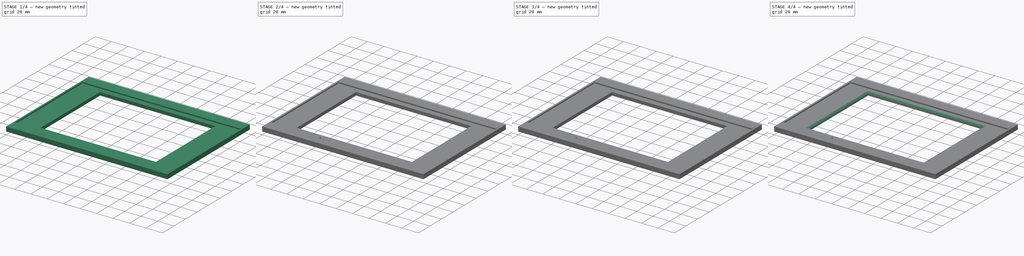
[diagram: build sequence overview — one tinted view per stage of 4, left to right]
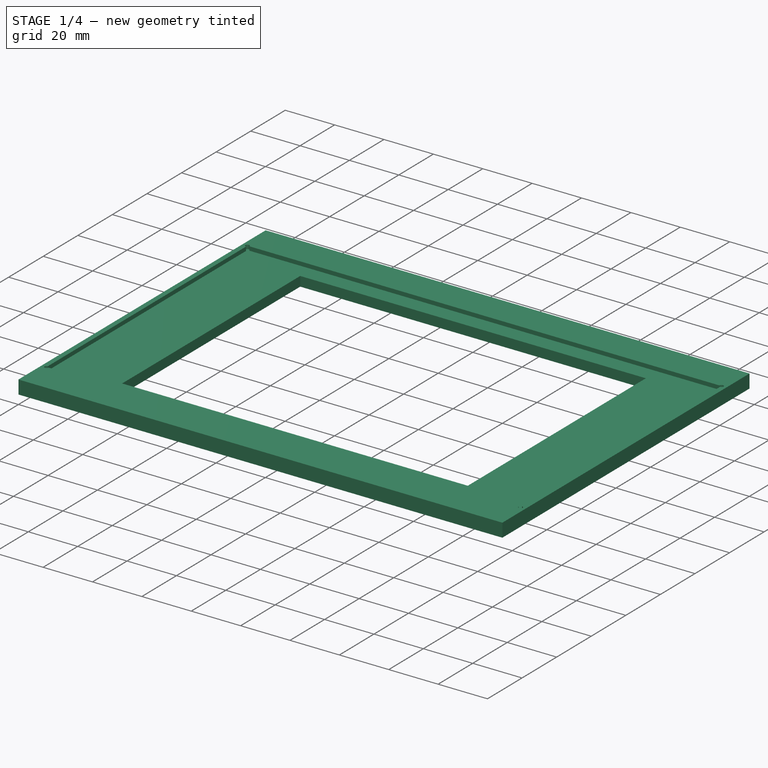
[diagram: stage 1 of 4 — iso view after this stage's code; geometry added in this stage tinted green]
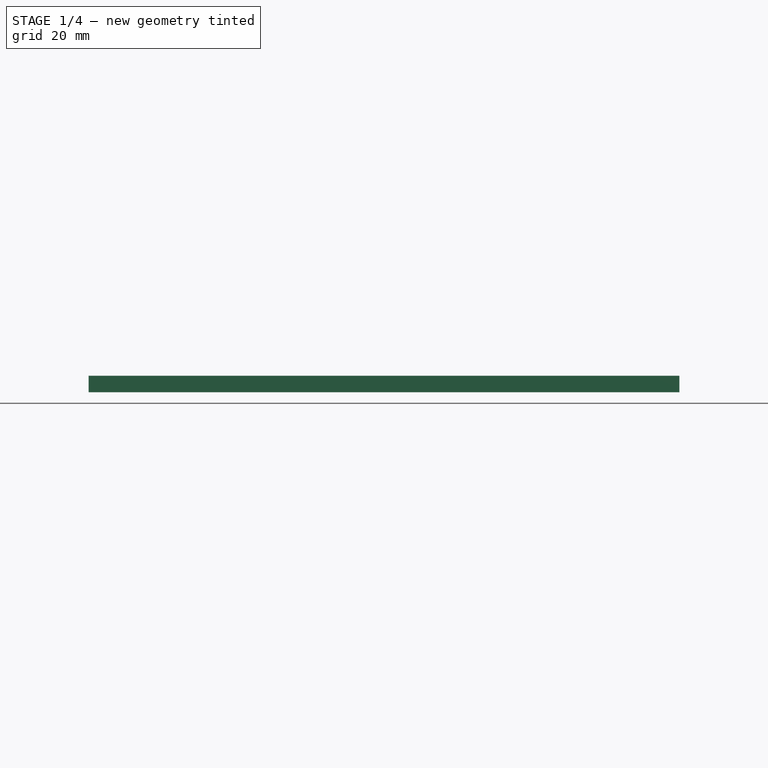
[diagram: stage 1 of 4 — front view after this stage's code; geometry added in this stage tinted green]
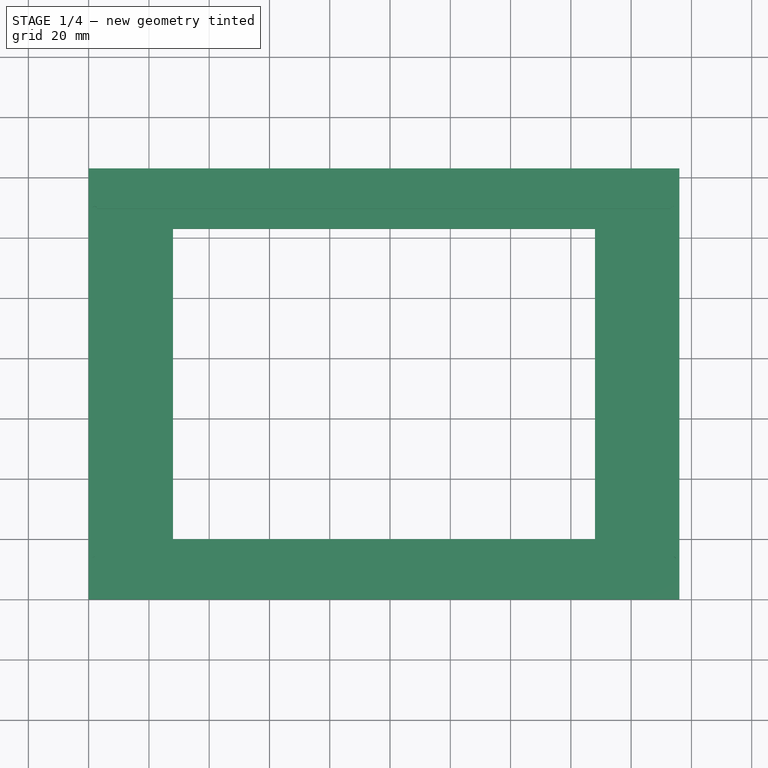
[diagram: stage 1 of 4 — top view after this stage's code; geometry added in this stage tinted green]
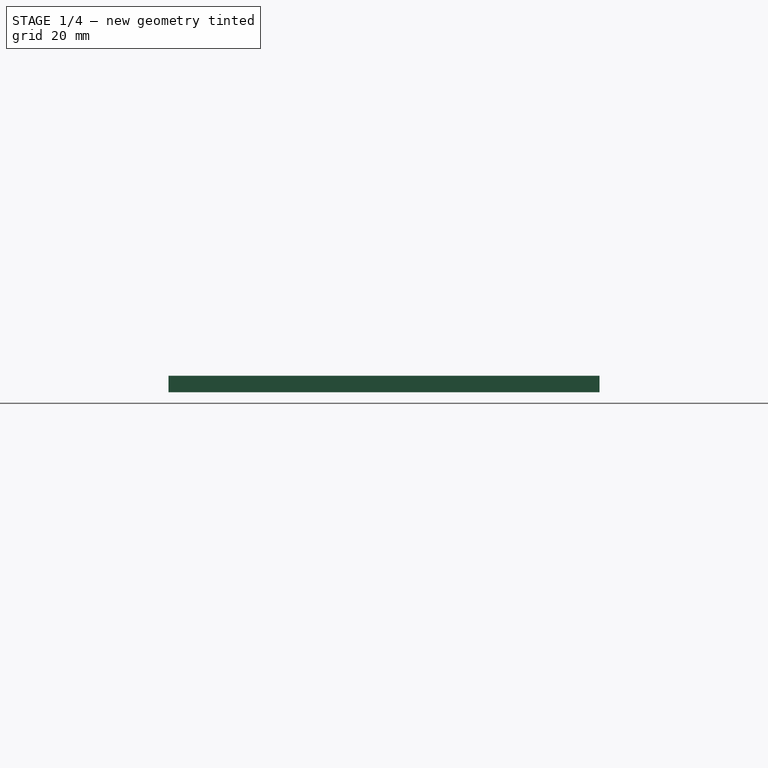
[diagram: stage 1 of 4 — right view after this stage's code; geometry added in this stage tinted green]
FCSTD DOCUMENT  (FreeCAD 0.19R24291 (Git))
Label: epaperFrameV5
License: All rights reserved
LicenseURL: http://en.wikipedia.org/wiki/All_rights_reserved
objects: Sketcher::SketchObject×8, PartDesign::Pocket×7, PartDesign::Pad×1, PartDesign::Chamfer×1, PartDesign::Body×1
note: 27 computed .brp shape members not serialized (recipe doc carries the construction recipe); baked Part::Feature solids carry a one-line shape summary decoded from their .brp

FEATURE [Sketcher::SketchObject] Sketch
  FullyConstrained = true
  MapMode = 5
  Support = -> [XY_Plane]
  sketch-geometry (8):
    g0: LineSegment StartX=0 StartY=0 StartZ=0 EndX=196 EndY=0 EndZ=0
    g1: LineSegment StartX=196 StartY=0 StartZ=0 EndX=196 EndY=143 EndZ=0
    g2: LineSegment StartX=196 StartY=143 StartZ=0 EndX=0 EndY=143 EndZ=0
    g3: LineSegment StartX=0 StartY=143 StartZ=0 EndX=0 EndY=0 EndZ=0
    g4: LineSegment StartX=28 StartY=123 StartZ=0 EndX=168 EndY=123 EndZ=0
    g5: LineSegment StartX=168 StartY=123 StartZ=0 EndX=168 EndY=20 EndZ=0
    g6: LineSegment StartX=168 StartY=20 StartZ=0 EndX=28 EndY=20 EndZ=0
    g7: LineSegment StartX=28 StartY=20 StartZ=0 EndX=28 EndY=123 EndZ=0
  constraints (23):
    c: Coincident(g0,g1)
    c: Coincident(g1,g2)
    c: Coincident(g2,g3)
    c: Coincident(g3,g0)
    c: Horizontal(g0)
    c: Horizontal(g2)
    c: Vertical(g1)
    c: Vertical(g3)
    c: Coincident(g0,g-1)
    c: Coincident(g4,g5)
    c: Coincident(g5,g6)
    c: Coincident(g6,g7)
    c: Coincident(g7,g4)
    c: Horizontal(g4)
    c: Horizontal(g6)
    c: Vertical(g5)
    c: Vertical(g7)
    c: DistanceX(g6,g6) = 140
    c: DistanceY(g5,g5) = 103
    c: DistanceX(g0,g0) = 196
    c: DistanceY(g1,g1) = 143
    c: DistanceY(g0,g6) = 20
    c: DistanceX(g0,g6) = 28
FEATURE [PartDesign::Pad] Pad
  Direction = (1,1,1)
  Length = 5.5
  Length2 = 100
  Profile = -> Sketch
  Type = 0
FEATURE [Sketcher::SketchObject] Sketch001
  FullyConstrained = true
  MapMode = 5
  Placement = pos=(0,0,5.5) rot=(0,0,1;0rad)
  Support = -> [Pad]
  sketch-geometry (16):
    g0: LineSegment StartX=2.8 StartY=129.6 StartZ=0 EndX=193.2 EndY=129.6 EndZ=0
    g1: LineSegment StartX=194 StartY=128.8 StartZ=0 EndX=194 EndY=14.2 EndZ=0
    g2: LineSegment StartX=193.2 StartY=13.4 StartZ=0 EndX=2.8 EndY=13.4 EndZ=0
    g3: LineSegment StartX=2 StartY=14.2 StartZ=0 EndX=2 EndY=128.8 EndZ=0
    g4: ArcOfCircle CenterX=194 CenterY=129.6 CenterZ=0 NormalX=0 NormalY=0 NormalZ=1 AngleXU=0 Radius=0.8 StartAngle=4.71239 EndAngle=9.42478
    g5: ArcOfCircle CenterX=2 CenterY=129.6 CenterZ=0 NormalX=0 NormalY=0 NormalZ=1 AngleXU=0 Radius=0.8 StartAngle=0 EndAngle=4.71239
    g6: ArcOfCircle CenterX=2 CenterY=13.4 CenterZ=0 NormalX=0 NormalY=0 NormalZ=1 AngleXU=0 Radius=0.8 StartAngle=1.5708 EndAngle=6.28319
    g7: ArcOfCircle CenterX=194 CenterY=13.4 CenterZ=0 NormalX=0 NormalY=0 NormalZ=1 AngleXU=0 Radius=0.8 StartAngle=3.14159 EndAngle=7.85398
    g8: LineSegment StartX=2 StartY=14.2 StartZ=0 EndX=2 EndY=13.4 EndZ=0
    g9: LineSegment StartX=2.8 StartY=13.4 StartZ=0 EndX=2 EndY=13.4 EndZ=0
    g10: LineSegment StartX=2 StartY=129.6 StartZ=0 EndX=2.8 EndY=129.6 EndZ=0
    g11: LineSegment StartX=2 StartY=129.6 StartZ=0 EndX=2 EndY=128.8 EndZ=0
    g12: LineSegment StartX=193.2 StartY=129.6 StartZ=0 EndX=194 EndY=129.6 EndZ=0
    g13: LineSegment StartX=194 StartY=129.6 StartZ=0 EndX=194 EndY=128.8 EndZ=0
    g14: LineSegment StartX=194 StartY=14.2 StartZ=0 EndX=194 EndY=13.4 EndZ=0
    g15: LineSegment StartX=194 StartY=13.4 StartZ=0 EndX=193.2 EndY=13.4 EndZ=0
  constraints (44):
    c: Horizontal(g0)
    c: Horizontal(g2)
    c: Vertical(g1)
    c: Vertical(g3)
    c: Radius(g4) = 0.8
    c: Equal(g4,g5)
    c: Equal(g5,g6)
    c: Equal(g6,g7)
    c: DistanceX(g6,g7) = 192
    c: DistanceY(g7,g4) = 116.2
    c: DistanceX(g-1,g6) = 2
    c: DistanceY(g-1,g6) = 13.4
    c: Coincident(g8,g3)
    c: Coincident(g8,g6)
    c: Vertical(g8)
    c: Coincident(g9,g2)
    c: Coincident(g9,g6)
    c: Horizontal(g9)
    c: Coincident(g10,g5)
    c: Coincident(g10,g0)
    c: Horizontal(g10)
    c: Coincident(g11,g5)
    c: Coincident(g11,g3)
    c: Vertical(g11)
    c: Coincident(g12,g0)
    c: Coincident(g12,g4)
    c: Horizontal(g12)
    c: Coincident(g13,g4)
    c: Coincident(g13,g1)
    c: Vertical(g13)
    c: Coincident(g14,g1)
    c: Coincident(g14,g7)
    c: Vertical(g14)
    c: Coincident(g15,g7)
    c: Coincident(g15,g2)
    c: Horizontal(g15)
    c: Coincident(g7,g2)
    c: Coincident(g7,g1)
    c: Coincident(g6,g3)
    c: Coincident(g6,g2)
    c: Coincident(g5,g0)
    c: Coincident(g5,g3)
    c: Coincident(g4,g1)
    c: Coincident(g4,g0)
FEATURE [PartDesign::Pocket] Pocket
  BaseFeature = -> Pad
  Length = 1.6
  Length2 = 100
  Profile = -> Sketch001
  Type = 0
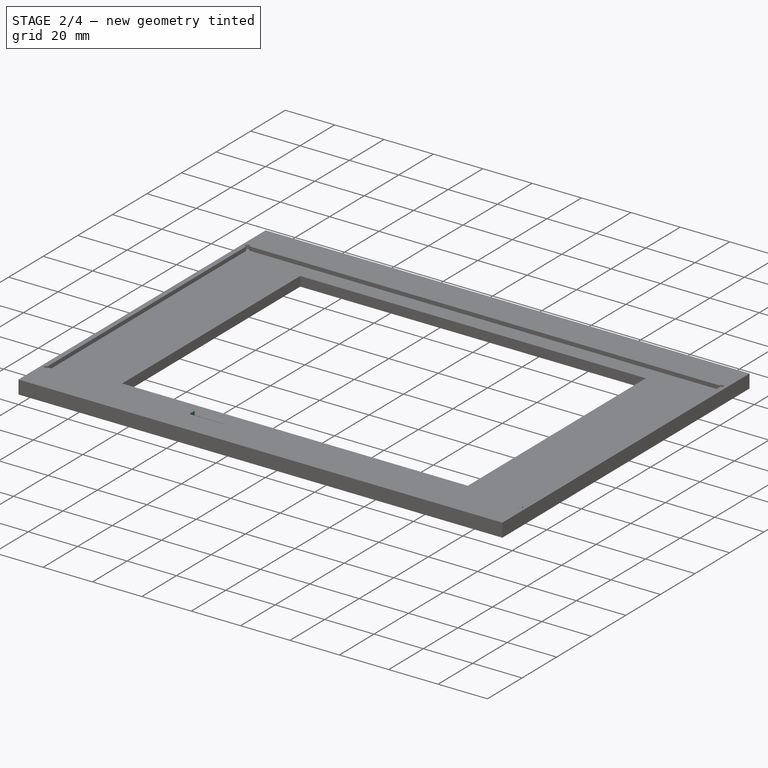
[diagram: stage 2 of 4 — iso view after this stage's code; geometry added in this stage tinted green]
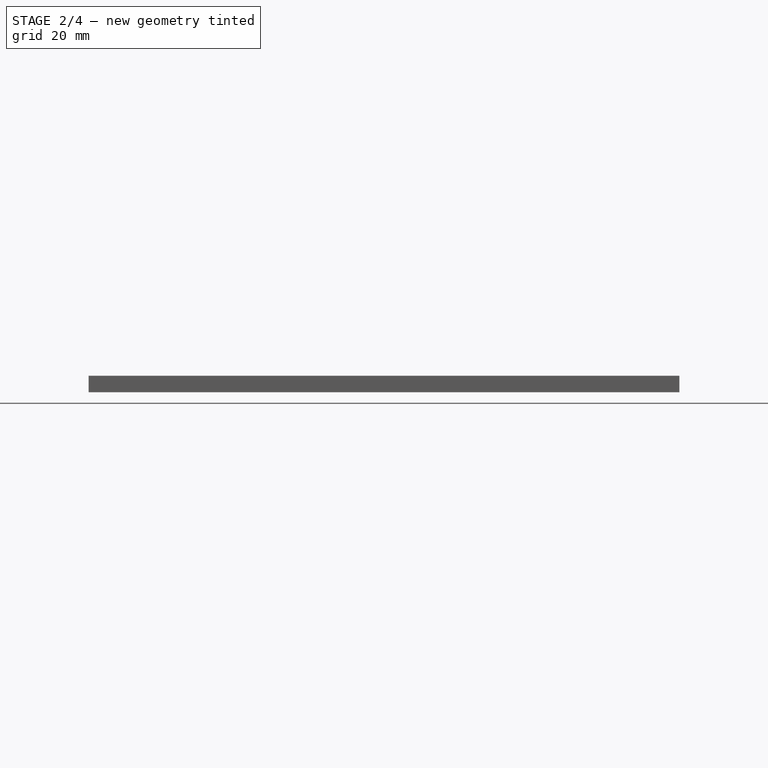
[diagram: stage 2 of 4 — front view after this stage's code; geometry added in this stage tinted green]
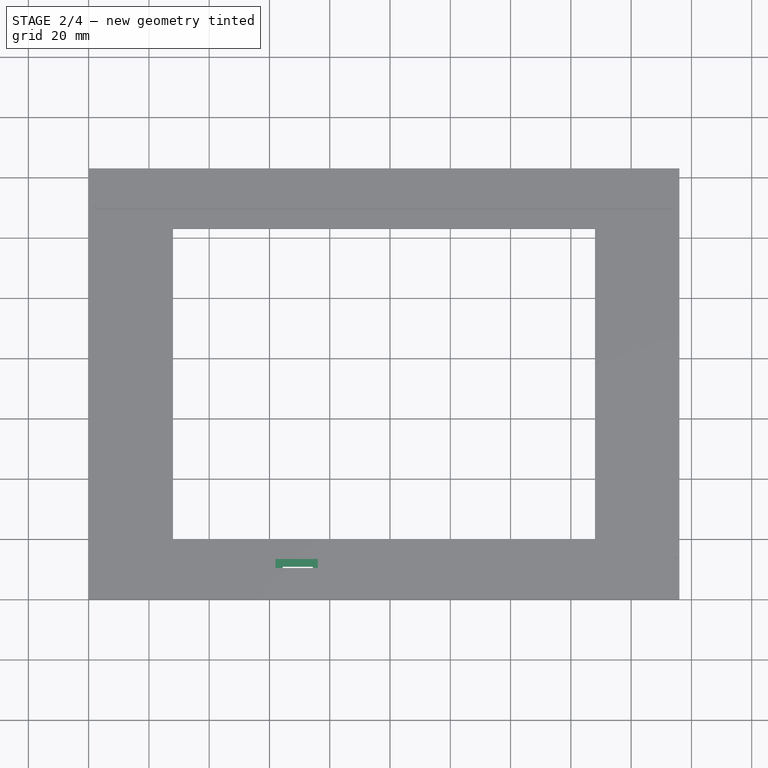
[diagram: stage 2 of 4 — top view after this stage's code; geometry added in this stage tinted green]
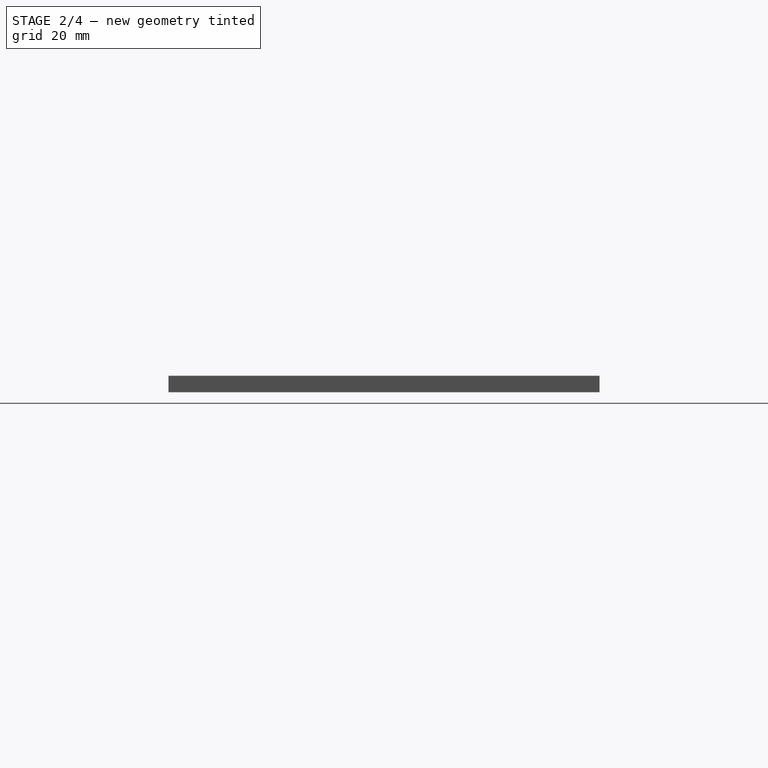
[diagram: stage 2 of 4 — right view after this stage's code; geometry added in this stage tinted green]
FEATURE [Sketcher::SketchObject] Sketch002
  ExternalGeometry = -> [Pocket]
  FullyConstrained = true
  MapMode = 5
  Placement = pos=(0,0,5.5) rot=(0,0,1;0rad)
  Support = -> [Pocket]
  sketch-geometry (4):
    g0: LineSegment StartX=62 StartY=13.4 StartZ=0 EndX=76 EndY=13.4 EndZ=0
    g1: LineSegment StartX=76 StartY=13.4 StartZ=0 EndX=76 EndY=10.4 EndZ=0
    g2: LineSegment StartX=76 StartY=10.4 StartZ=0 EndX=62 EndY=10.4 EndZ=0
    g3: LineSegment StartX=62 StartY=10.4 StartZ=0 EndX=62 EndY=13.4 EndZ=0
  constraints (12):
    c: Coincident(g0,g1)
    c: Coincident(g1,g2)
    c: Coincident(g2,g3)
    c: Coincident(g3,g0)
    c: Horizontal(g0)
    c: Horizontal(g2)
    c: Vertical(g1)
    c: Vertical(g3)
    c: PointOnObject(g0,g-3)
    c: DistanceX(g2,g2) = 14
    c: DistanceY(g1,g1) = 3
    c: DistanceX(g-3,g0) = 59.2
FEATURE [PartDesign::Pocket] Pocket001
  BaseFeature = -> Pocket
  Length = 2
  Length2 = 100
  Profile = -> Sketch002
  Type = 0
FEATURE [Sketcher::SketchObject] Sketch003
  ExternalGeometry = -> [Pocket001]
  FullyConstrained = true
  MapMode = 5
  Placement = pos=(0,0,0) rot=(1,0,0;3.14159rad)
  Support = -> [Pocket001]
  sketch-geometry (4):
    g0: LineSegment StartX=64.4 StartY=-7.9 StartZ=0 EndX=74.4 EndY=-7.9 EndZ=0
    g1: LineSegment StartX=74.4 StartY=-7.9 StartZ=0 EndX=74.4 EndY=-10.9 EndZ=0
    g2: LineSegment StartX=74.4 StartY=-10.9 StartZ=0 EndX=64.4 EndY=-10.9 EndZ=0
    g3: LineSegment StartX=64.4 StartY=-10.9 StartZ=0 EndX=64.4 EndY=-7.9 EndZ=0
  constraints (12):
    c: Coincident(g0,g1)
    c: Coincident(g1,g2)
    c: Coincident(g2,g3)
    c: Coincident(g3,g0)
    c: Horizontal(g0)
    c: Horizontal(g2)
    c: Vertical(g1)
    c: Vertical(g3)
    c: DistanceX(g0,g0) = 10
    c: DistanceY(g1,g1) = 3
    c: DistanceX(g-1,g2) = 64.4
    c: DistanceY(g2,g-1) = 10.9
FEATURE [PartDesign::Pocket] Pocket002
  BaseFeature = -> Pocket001
  Length = 5
  Length2 = 100
  Profile = -> Sketch003
  Type = 0
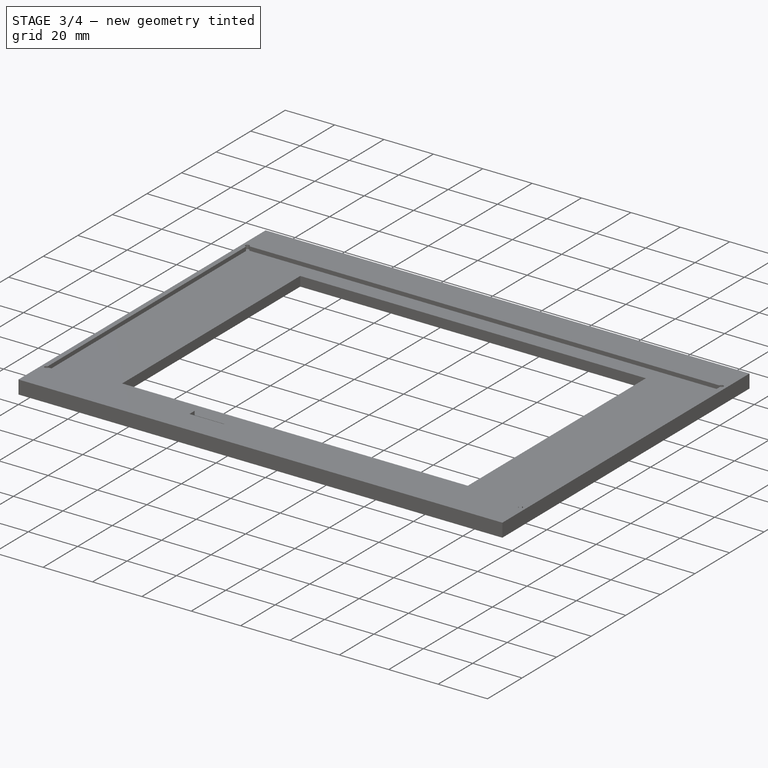
[diagram: stage 3 of 4 — iso view after this stage's code; geometry added in this stage tinted green]
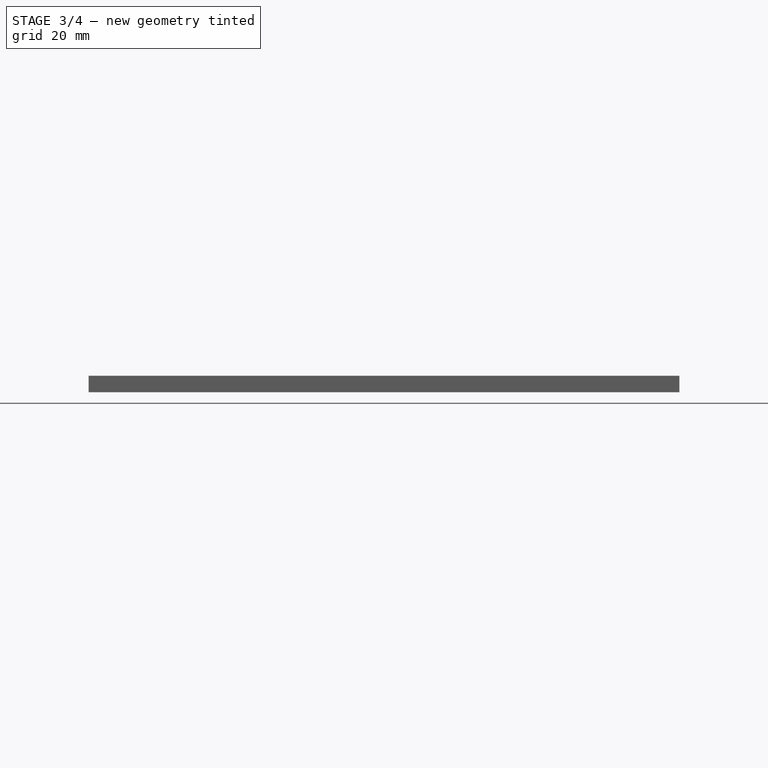
[diagram: stage 3 of 4 — front view after this stage's code; geometry added in this stage tinted green]
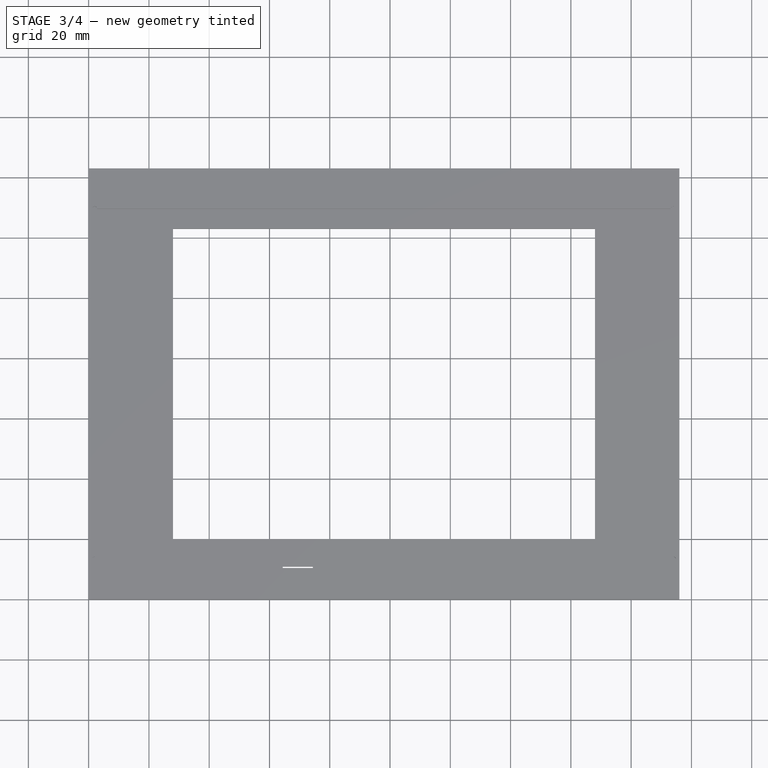
[diagram: stage 3 of 4 — top view after this stage's code; geometry added in this stage tinted green]
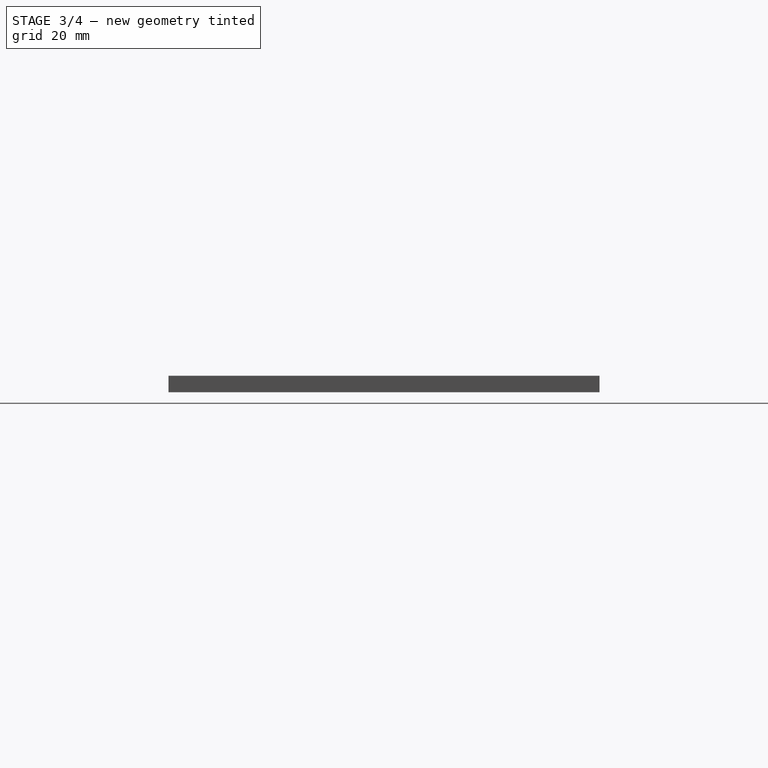
[diagram: stage 3 of 4 — right view after this stage's code; geometry added in this stage tinted green]
FEATURE [Sketcher::SketchObject] Sketch004
  ExternalGeometry = -> [Pocket002]
  FullyConstrained = true
  MapMode = 5
  Placement = pos=(0,0,0) rot=(1,0,0;3.14159rad)
  Support = -> [Pocket002]
  sketch-geometry (4):
    g0: LineSegment StartX=32.2 StartY=-20 StartZ=0 EndX=46.2 EndY=-20 EndZ=0
    g1: LineSegment StartX=46.2 StartY=-20 StartZ=0 EndX=46.2 EndY=-11 EndZ=0
    g2: LineSegment StartX=46.2 StartY=-11 StartZ=0 EndX=32.2 EndY=-11 EndZ=0
    g3: LineSegment StartX=32.2 StartY=-11 StartZ=0 EndX=32.2 EndY=-20 EndZ=0
  constraints (12):
    c: Coincident(g0,g1)
    c: Coincident(g1,g2)
    c: Coincident(g2,g3)
    c: Coincident(g3,g0)
    c: Horizontal(g0)
    c: Horizontal(g2)
    c: Vertical(g1)
    c: Vertical(g3)
    c: PointOnObject(g0,g-3)
    c: DistanceX(g2,g2) = 14
    c: DistanceY(g1,g1) = 9
    c: DistanceX(g-3,g0) = 4.2
FEATURE [PartDesign::Pocket] Pocket003
  BaseFeature = -> Pocket002
  Length = 1
  Length2 = 100
  Profile = -> Sketch004
  Type = 0
FEATURE [Sketcher::SketchObject] Sketch005
  ExternalGeometry = -> [Pocket003]
  FullyConstrained = true
  MapMode = 5
  Placement = pos=(0,0,0) rot=(1,0,0;3.14159rad)
  Support = -> [Pocket003]
  sketch-geometry (8):
    g0: LineSegment StartX=31.1 StartY=-15 StartZ=0 EndX=174.3 EndY=-15 EndZ=0
    g1: LineSegment StartX=174.3 StartY=-15 StartZ=0 EndX=174.3 EndY=-127.5 EndZ=0
    g2: LineSegment StartX=174.3 StartY=-127.5 StartZ=0 EndX=31.1 EndY=-127.5 EndZ=0
    g3: LineSegment StartX=31.1 StartY=-127.5 StartZ=0 EndX=31.1 EndY=-15 EndZ=0
    g4: Circle CenterX=31.1 CenterY=-127.5 CenterZ=0 NormalX=0 NormalY=0 NormalZ=1 AngleXU=0 Radius=1.25
    g5: Circle CenterX=174.3 CenterY=-127.5 CenterZ=0 NormalX=0 NormalY=0 NormalZ=1 AngleXU=0 Radius=1.25
    g6: Circle CenterX=174.3 CenterY=-15 CenterZ=0 NormalX=0 NormalY=0 NormalZ=1 AngleXU=0 Radius=1.25
    g7: Circle CenterX=50 CenterY=-15 CenterZ=0 NormalX=0 NormalY=0 NormalZ=1 AngleXU=0 Radius=1.25
  constraints (21):
    c: Coincident(g0,g1)
    c: Coincident(g1,g2)
    c: Coincident(g2,g3)
    c: Coincident(g3,g0)
    c: Horizontal(g0)
    c: Horizontal(g2)
    c: Vertical(g1)
    c: Vertical(g3)
    c: DistanceX(g2,g2) = 143.2
    c: DistanceY(g1,g1) = 112.5
    c: Coincident(g4,g2)
    c: Coincident(g5,g1)
    c: Coincident(g6,g0)
    c: PointOnObject(g7,g0)
    c: Radius(g7) = 1.25
    c: Equal(g7,g6)
    c: Equal(g6,g5)
    c: Equal(g5,g4)
    c: DistanceX(g-3,g5) = 6.3
    c: DistanceY(g4,g-3) = 4.5
    c: DistanceX(g-3,g7) = 22
FEATURE [PartDesign::Pocket] Pocket004
  BaseFeature = -> Pocket003
  Length = 3.3
  Length2 = 100
  Profile = -> Sketch005
  Type = 0
FEATURE [Sketcher::SketchObject] Sketch006
  ExternalGeometry = -> [Pocket004]
  FullyConstrained = true
  MapMode = 5
  Placement = pos=(0,0,0) rot=(1,0,0;3.14159rad)
  Support = -> [Pocket004]
  sketch-geometry (8):
    g0: LineSegment StartX=171.1 StartY=-36 StartZ=0 EndX=178.1 EndY=-36 EndZ=0
    g1: LineSegment StartX=178.1 StartY=-36 StartZ=0 EndX=178.1 EndY=-48 EndZ=0
    g2: LineSegment StartX=178.1 StartY=-48 StartZ=0 EndX=171.1 EndY=-48 EndZ=0
    g3: LineSegment StartX=171.1 StartY=-48 StartZ=0 EndX=171.1 EndY=-36 EndZ=0
    g4: LineSegment StartX=158.8 StartY=-126 StartZ=0 EndX=82.8 EndY=-126 EndZ=0
    g5: LineSegment StartX=82.8 StartY=-126 StartZ=0 EndX=82.8 EndY=-133 EndZ=0
    g6: LineSegment StartX=82.8 StartY=-133 StartZ=0 EndX=158.8 EndY=-133 EndZ=0
    g7: LineSegment StartX=158.8 StartY=-133 StartZ=0 EndX=158.8 EndY=-126 EndZ=0
  constraints (24):
    c: Coincident(g0,g1)
    c: Coincident(g1,g2)
    c: Coincident(g2,g3)
    c: Coincident(g3,g0)
    c: Horizontal(g0)
    c: Horizontal(g2)
    c: Vertical(g1)
    c: Vertical(g3)
    c: DistanceY(g1,g1) = 12
    c: DistanceX(g2,g2) = 7
    c: Coincident(g4,g5)
    c: Coincident(g5,g6)
    c: Coincident(g6,g7)
    c: Coincident(g7,g4)
    c: Horizontal(g4)
    c: Horizontal(g6)
    c: Vertical(g5)
    c: Vertical(g7)
    c: DistanceX(g6,g6) = 76
    c: DistanceY(g7,g7) = 7
    c: DistanceY(g-3,g6) = 10
    c: DistanceY(g0,g-3) = 36
    c: DistanceX(g6,g-3) = 37.2
    c: DistanceX(g0,g-3) = 17.9
FEATURE [PartDesign::Pocket] Pocket005
  BaseFeature = -> Pocket004
  Length = 2.5
  Length2 = 100
  Profile = -> Sketch006
  Type = 0
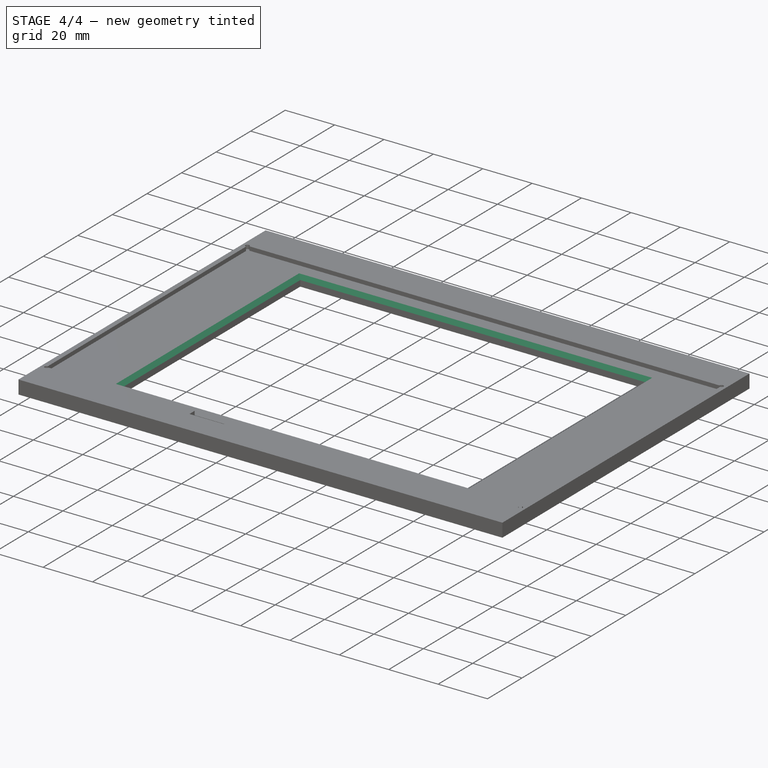
[diagram: stage 4 of 4 — iso view after this stage's code; geometry added in this stage tinted green]
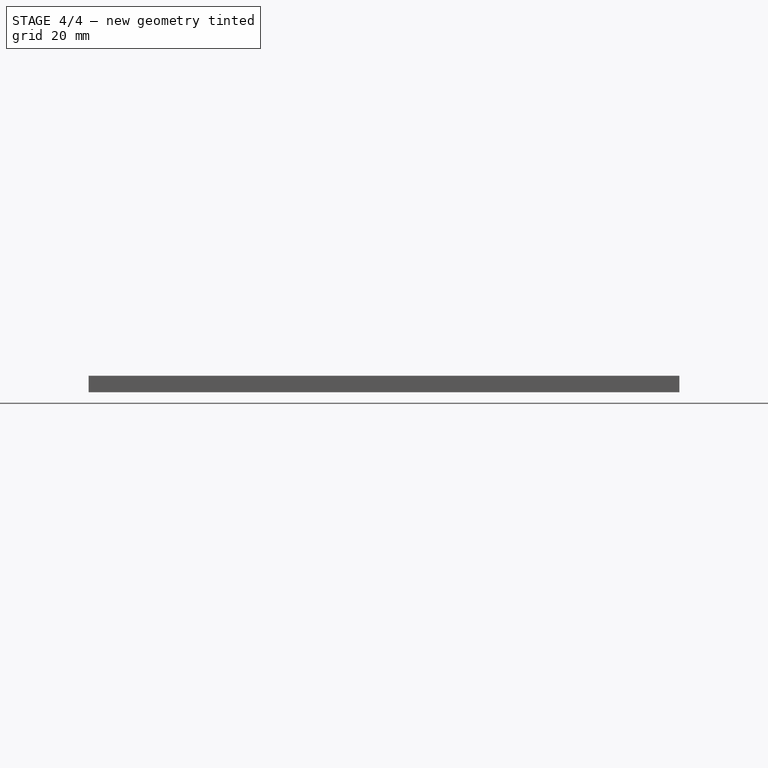
[diagram: stage 4 of 4 — front view after this stage's code; geometry added in this stage tinted green]
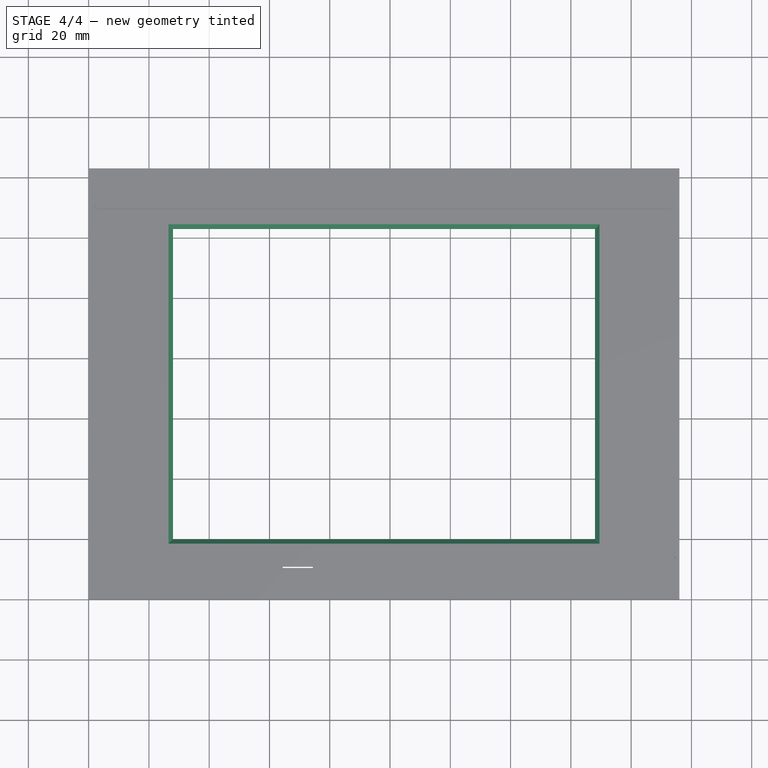
[diagram: stage 4 of 4 — top view after this stage's code; geometry added in this stage tinted green]
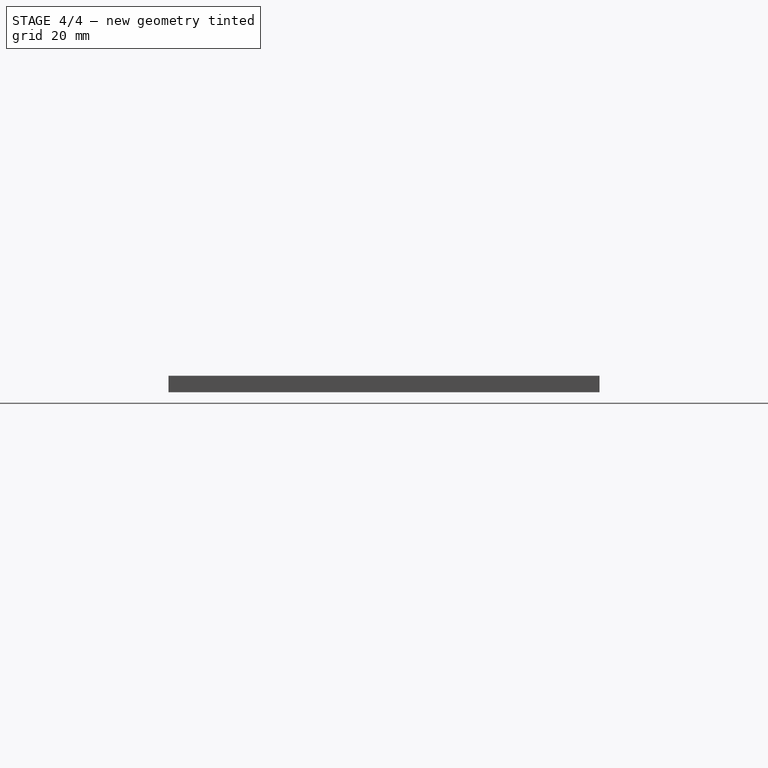
[diagram: stage 4 of 4 — right view after this stage's code; geometry added in this stage tinted green]
FEATURE [Sketcher::SketchObject] Sketch007
  FullyConstrained = true
  MapMode = 5
  Placement = pos=(0,0,0) rot=(1,0,0;3.14159rad)
  Support = -> [Pocket005]
  sketch-geometry (11):
    g0: LineSegment StartX=13 StartY=-7.5 StartZ=0 EndX=183 EndY=-7.5 EndZ=0
    g1: LineSegment StartX=183 StartY=-7.5 StartZ=0 EndX=183 EndY=-135.5 EndZ=0
    g2: LineSegment StartX=183 StartY=-135.5 StartZ=0 EndX=13 EndY=-135.5 EndZ=0
    g3: LineSegment StartX=13 StartY=-135.5 StartZ=0 EndX=13 EndY=-7.5 EndZ=0
    g4: Circle CenterX=183 CenterY=-7.5 CenterZ=0 NormalX=0 NormalY=0 NormalZ=1 AngleXU=0 Radius=1.25
    g5: Circle CenterX=183 CenterY=-135.5 CenterZ=0 NormalX=0 NormalY=0 NormalZ=1 AngleXU=0 Radius=1.25
    g6: Circle CenterX=13 CenterY=-135.5 CenterZ=0 NormalX=0 NormalY=0 NormalZ=1 AngleXU=0 Radius=1.25
    g7: Circle CenterX=13 CenterY=-7.5 CenterZ=0 NormalX=0 NormalY=0 NormalZ=1 AngleXU=0 Radius=1.25
    g8: Circle CenterX=13 CenterY=-50.1667 CenterZ=0 NormalX=0 NormalY=0 NormalZ=1 AngleXU=0 Radius=1.25
    g9: Circle CenterX=13 CenterY=-92.8334 CenterZ=0 NormalX=0 NormalY=0 NormalZ=1 AngleXU=0 Radius=1.25
    g10: Circle CenterX=183 CenterY=-92.8333 CenterZ=0 NormalX=0 NormalY=0 NormalZ=1 AngleXU=0 Radius=1.25
  constraints (29):
    c: Coincident(g0,g1)
    c: Coincident(g1,g2)
    c: Coincident(g2,g3)
    c: Coincident(g3,g0)
    c: Horizontal(g0)
    c: Horizontal(g2)
    c: Vertical(g1)
    c: Vertical(g3)
    c: DistanceX(g0,g0) = 170
    c: DistanceY(g1,g1) = 128
    c: DistanceX(g-1,g0) = 13
    c: DistanceY(g0,g-1) = 7.5
    c: Coincident(g4,g0)
    c: Coincident(g5,g1)
    c: Coincident(g6,g2)
    c: Coincident(g7,g0)
    c: PointOnObject(g8,g3)
    c: PointOnObject(g9,g3)
    c: PointOnObject(g10,g1)
    c: Radius(g7) = 1.25
    c: Equal(g7,g8)
    c: Equal(g8,g9)
    c: Equal(g9,g6)
    c: Equal(g6,g10)
    c: Equal(g10,g4)
    c: Equal(g4,g5)
    c: DistanceY(g8,g7) = 42.6667
    c: DistanceY(g9,g8) = 42.6667
    c: DistanceY(g5,g10) = 42.6667
FEATURE [PartDesign::Pocket] Pocket006
  BaseFeature = -> Pocket005
  Length = 3.3
  Length2 = 100
  Profile = -> Sketch007
  Type = 0
FEATURE [PartDesign::Chamfer] Chamfer
  Angle = 45
  Base = -> Pocket006 [Edge87,Edge79,Edge84,Edge90]
  BaseFeature = -> Pocket006
  ChamferType = 0
  FlipDirection = false
  Size = 1.5
  Size2 = 1
  SupportTransform = false
FEATURE [PartDesign::Body] Body
  Group = -> [Sketch,Pad,Sketch001,Pocket,Sketch002,Pocket001,Sketch003,Pocket002,Sketch004,Pocket003,Sketch005,Pocket004,Sketch006,Pocket005,Sketch007,Pocket006,Chamfer]
  Origin = -> Origin
  Tip = -> Chamfer
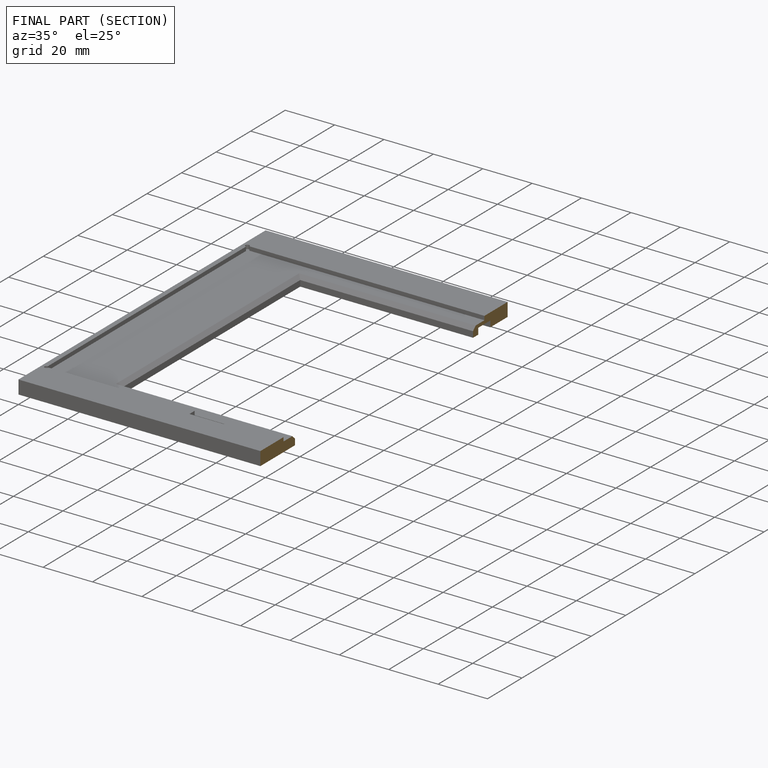
[diagram: finished part — half-section view (interior)]
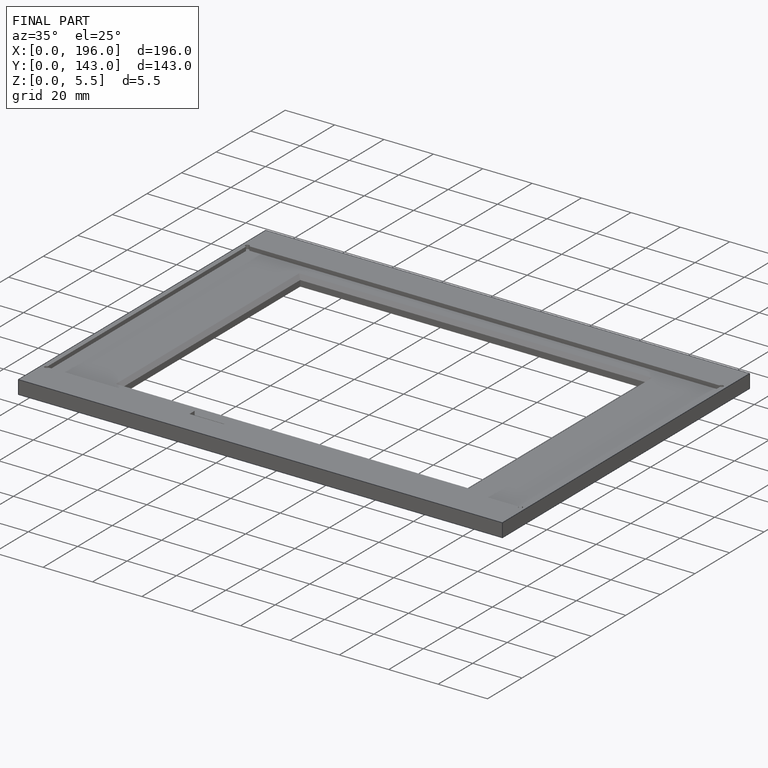
[diagram: finished part — iso view with bounding-box wireframe]
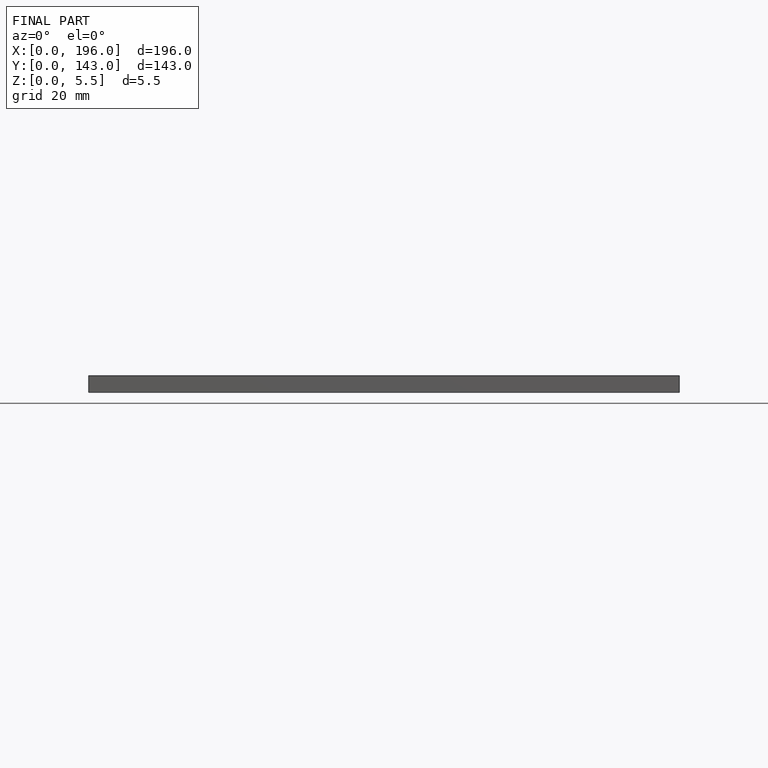
[diagram: finished part — front view with bounding-box wireframe]
